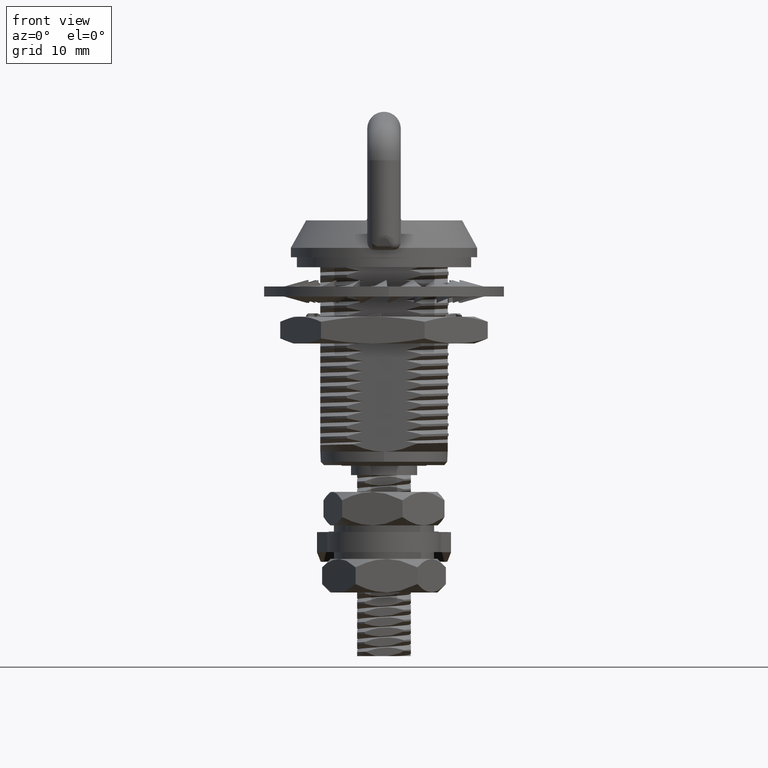
[diagram: clean part render]
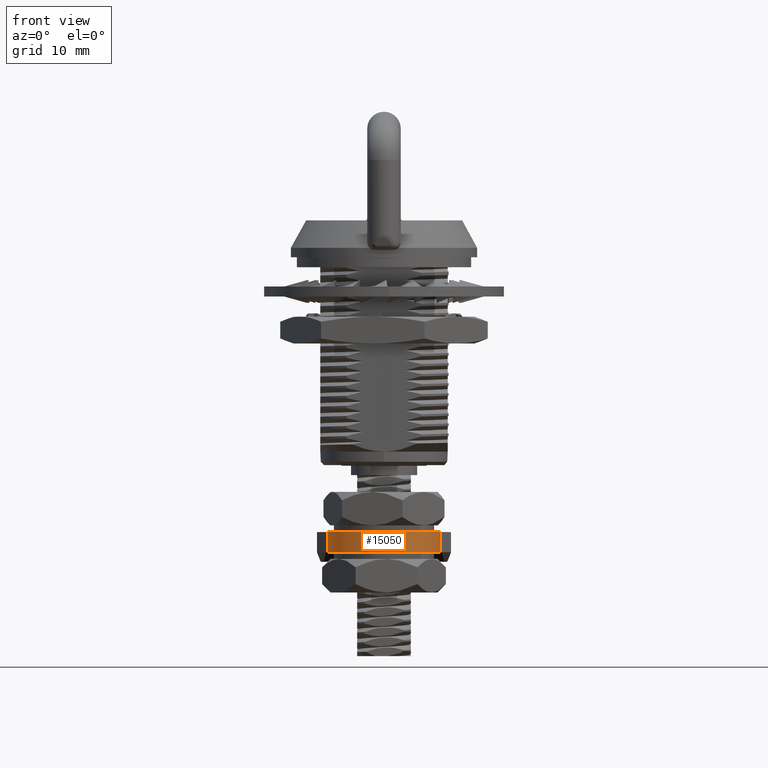
[diagram: same view with one face highlighted and labeled with its STEP entity id]
A machine part, front view. The second image highlights one B-rep face of the part: STEP entity #15050.
In plain terms, the highlighted cylindrical surface (partial cylindrical patch) has radius 8.5 mm, axis along (0, 0, 1).
Its self-contained STEP definition (entity closure, byte-faithful):
#2039=CYLINDRICAL_SURFACE('',#15957,8.5);
#2714=LINE('',#84856,#3393);
#2716=LINE('',#84862,#3395);
#3393=VECTOR('',#18437,3.);
#3395=VECTOR('',#18443,3.);
#4353=FACE_OUTER_BOUND('',#5278,.T.);
#5278=EDGE_LOOP('',(#13920,#13921,#13922,#13923));
#5557=CIRCLE('',#15958,8.5);
#5558=CIRCLE('',#15959,8.5);
#7048=VERTEX_POINT('',#84853);
#7049=VERTEX_POINT('',#84855);
#7050=VERTEX_POINT('',#84859);
#7051=VERTEX_POINT('',#84861);
#9345=EDGE_CURVE('',#7049,#7048,#2714,.T.);
#9347=EDGE_CURVE('',#7048,#7050,#5557,.T.);
#9348=EDGE_CURVE('',#7051,#7050,#2716,.T.);
#9349=EDGE_CURVE('',#7051,#7049,#5558,.T.);
#13920=ORIENTED_EDGE('',*,*,#9347,.T.);
#13921=ORIENTED_EDGE('',*,*,#9348,.F.);
#13922=ORIENTED_EDGE('',*,*,#9349,.T.);
#13923=ORIENTED_EDGE('',*,*,#9345,.T.);
#15050=ADVANCED_FACE('',(#4353),#2039,.T.);
#15957=AXIS2_PLACEMENT_3D('',#84858,#18439,#18440);
#15958=AXIS2_PLACEMENT_3D('',#84860,#18441,#18442);
#15959=AXIS2_PLACEMENT_3D('',#84863,#18444,#18445);
#18437=DIRECTION('',(0.,0.,1.));
#18439=DIRECTION('center_axis',(0.,0.,1.));
#18440=DIRECTION('ref_axis',(-4.89804275569922E-17,-1.,0.));
#18441=DIRECTION('center_axis',(0.,0.,-1.));
#18442=DIRECTION('ref_axis',(-0.994510644155147,0.104635456046764,0.));
#18443=DIRECTION('',(0.,0.,1.));
#18444=DIRECTION('center_axis',(0.,0.,1.));
#18445=DIRECTION('ref_axis',(-0.994510644155147,0.104635456046764,0.));
#84853=CARTESIAN_POINT('',(8.45334047531875,0.889401376397498,3.));
#84855=CARTESIAN_POINT('',(8.45334047531875,0.889401376397498,0.));
#84856=CARTESIAN_POINT('',(8.45334047531875,0.889401376397498,0.));
#84858=CARTESIAN_POINT('Origin',(0.,0.,0.));
#84859=CARTESIAN_POINT('',(-8.45334047531875,0.889401376397498,3.));
#84860=CARTESIAN_POINT('Origin',(0.,0.,3.));
#84861=CARTESIAN_POINT('',(-8.45334047531875,0.889401376397498,0.));
#84862=CARTESIAN_POINT('',(-8.45334047531875,0.889401376397498,0.));
#84863=CARTESIAN_POINT('Origin',(0.,0.,0.));